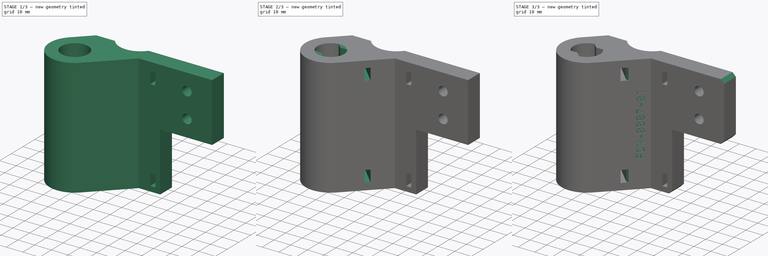
[diagram: build sequence overview — one tinted view per stage of 3, left to right]
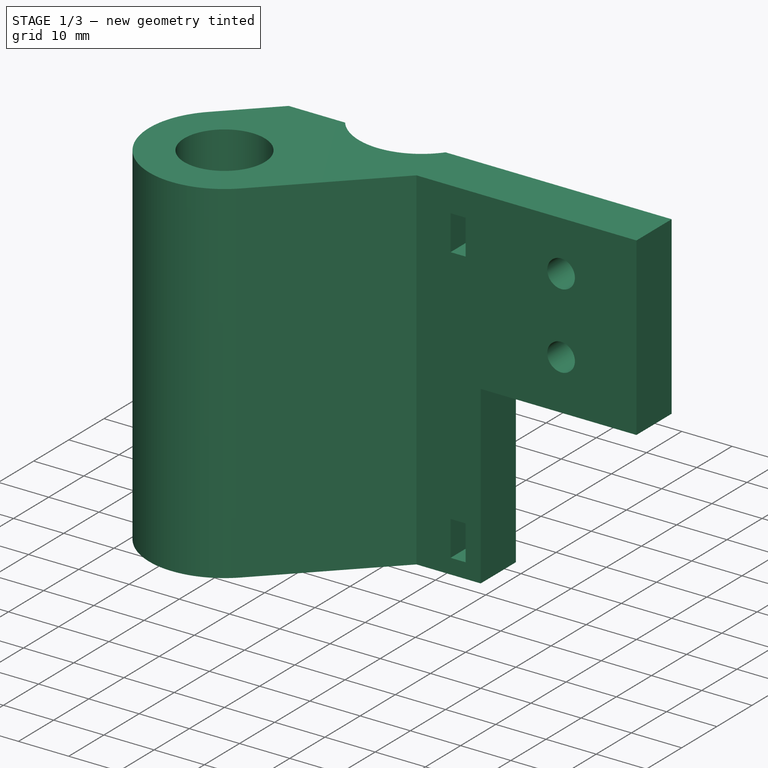
[diagram: stage 1 of 3 — iso view after this stage's code; geometry added in this stage tinted green]
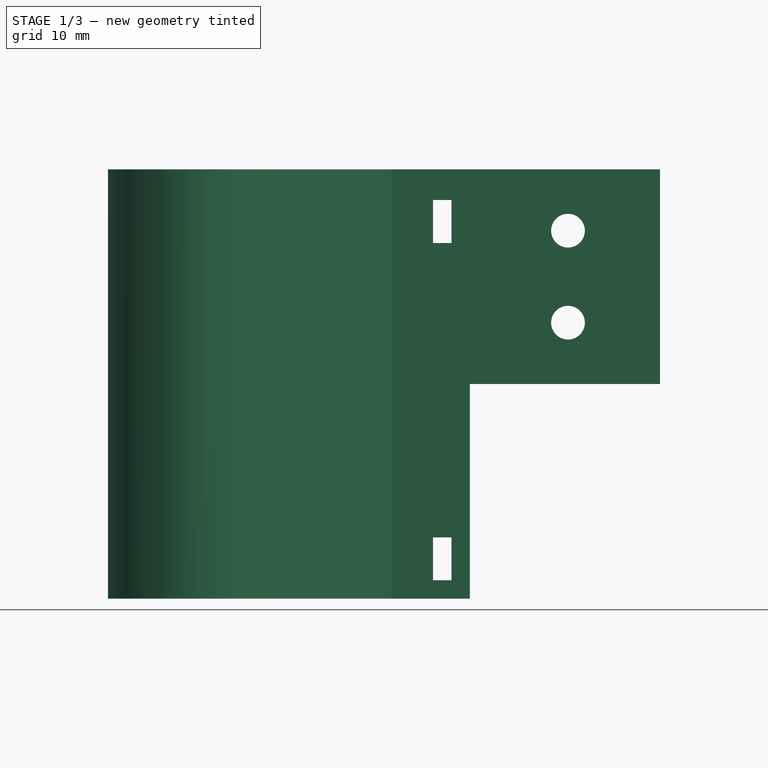
[diagram: stage 1 of 3 — front view after this stage's code; geometry added in this stage tinted green]
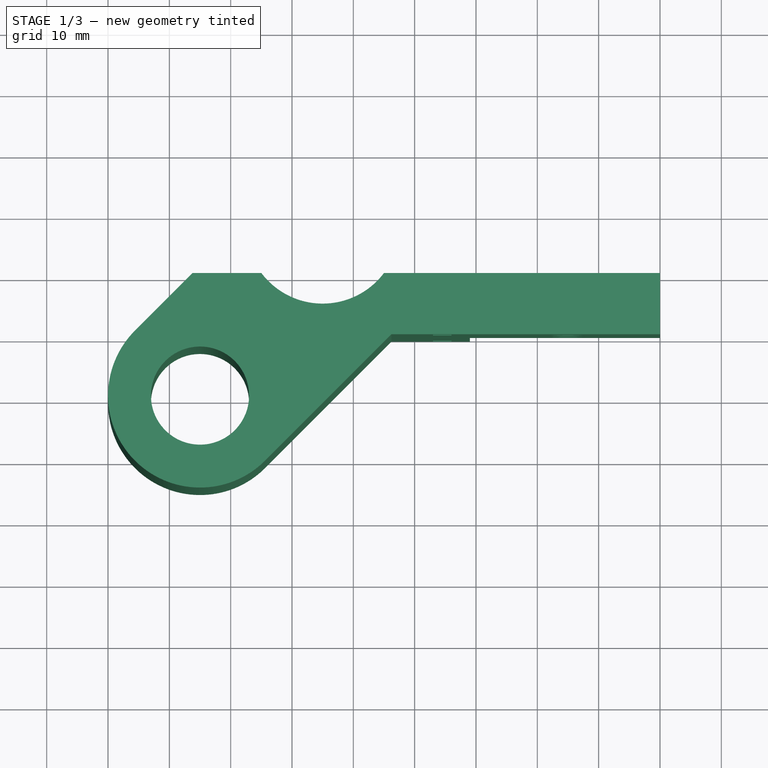
[diagram: stage 1 of 3 — top view after this stage's code; geometry added in this stage tinted green]
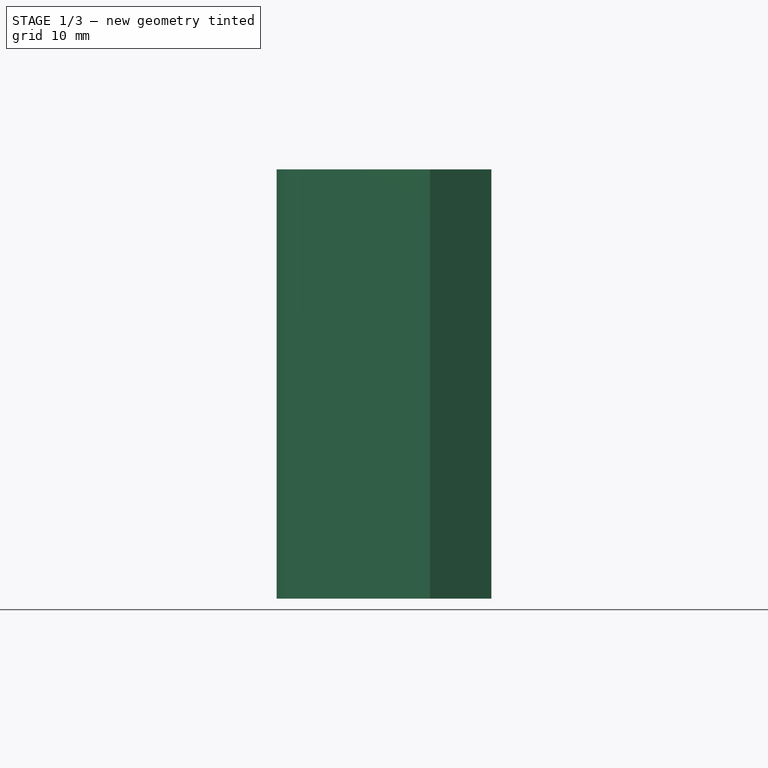
[diagram: stage 1 of 3 — right view after this stage's code; geometry added in this stage tinted green]
FCSTD DOCUMENT  (FreeCAD 0.19R24291 (Git))
Label: FDM-0007_frame-umbilical-mount
License: All rights reserved
LicenseURL: http://en.wikipedia.org/wiki/All_rights_reserved
objects: Sketcher::SketchObject×5, PartDesign::Pocket×4, PartDesign::Plane×3, PartDesign::Pad×2, PartDesign::Fillet×1, PartDesign::Chamfer×1, Part::Part2DObjectPython×1, PartDesign::Body×1
note: 26 computed .brp shape members not serialized (recipe doc carries the construction recipe); baked Part::Feature solids carry a one-line shape summary decoded from their .brp

FEATURE [Sketcher::SketchObject] Sketch
  FullyConstrained = true
  MapMode = 5
  Support = -> [XY_Plane]
  sketch-geometry (10):
    g0: LineSegment StartX=0 StartY=10 StartZ=0 EndX=0 EndY=0 EndZ=0
    g1: ArcOfCircle CenterX=-55 CenterY=17.5 CenterZ=0 NormalX=0 NormalY=0 NormalZ=1 AngleXU=0 Radius=12.5 StartAngle=3.78509 EndAngle=5.63968
    g2: LineSegment StartX=-76.2132 StartY=10 StartZ=0 EndX=-65 EndY=10 EndZ=0
    g3: LineSegment StartX=-45 StartY=10 StartZ=0 EndX=0 EndY=10 EndZ=0
    g4: Circle CenterX=-55 CenterY=17.5 CenterZ=0 NormalX=0 NormalY=0 NormalZ=1 AngleXU=0 Radius=12.5
    g5: Circle CenterX=-75 CenterY=-10 CenterZ=0 NormalX=0 NormalY=0 NormalZ=1 AngleXU=0 Radius=8
    g6: LineSegment StartX=-43.7868 StartY=0 StartZ=0 EndX=0 EndY=0 EndZ=0
    g7: ArcOfCircle CenterX=-75 CenterY=-10 CenterZ=0 NormalX=0 NormalY=0 NormalZ=1 AngleXU=0 Radius=15 StartAngle=2.3562 EndAngle=5.49779
    g8: LineSegment StartX=-64.3934 StartY=-20.6066 StartZ=0 EndX=-43.7868 EndY=0 EndZ=0
    g9: LineSegment StartX=-85.6066 StartY=0.60658 StartZ=0 EndX=-76.2132 EndY=10 EndZ=0
  constraints (30):
    c: Coincident(g3,g0)
    c: Vertical(g0)
    c: Distance(g0) = 10
    c: PointOnObject(g2,g1)
    c: PointOnObject(g3,g1)
    c: Tangent(g2,g3)
    c: Diameter(g1) = 25
    c: Coincident(g4,g1)
    c: PointOnObject(g1,g4)
    c: Horizontal(g3)
    c: PointOnObject(g1,g2)
    c: PointOnObject(g1,g3)
    c: DistanceX(g1,g0) = 55
    c: DistanceY(g0,g1) = 7.5
    c: Diameter(g5) = 16
    c: DistanceX(g5,g0) = 75
    c: Coincident(g6,g0)
    c: Horizontal(g6)
    c: Coincident(g0,g-1)
    c: DistanceY(g5,g0) = 10
    c: Coincident(g7,g5)
    c: Coincident(g8,g7)
    c: Coincident(g8,g6)
    c: Tangent(g7,g8)
    c: Angle(g8,g-1) = 2.35619
    c: Coincident(g9,g7)
    c: Coincident(g9,g2)
    c: Tangent(g9,g7)
    c: Parallel(g9,g8)
    c: Diameter(g7) = 30
FEATURE [PartDesign::Pad] Pad
  AllowMultiFace = false
  Direction = (1,1,1)
  Length = 70
  Length2 = 100
  Profile = -> Sketch
  Type = 0
FEATURE [Sketcher::SketchObject] Sketch001
  FullyConstrained = true
  MapMode = 5
  Placement = pos=(0,0,0) rot=(1,0,0;1.5708rad)
  Support = -> [XZ_Plane]
  sketch-geometry (10):
    g0: Circle CenterX=-15 CenterY=60 CenterZ=0 NormalX=0 NormalY=0 NormalZ=1 AngleXU=0 Radius=2.75
    g1: Circle CenterX=-15 CenterY=45 CenterZ=0 NormalX=0 NormalY=0 NormalZ=1 AngleXU=0 Radius=2.75
    g2: LineSegment StartX=-37 StartY=65 StartZ=0 EndX=-34 EndY=65 EndZ=0
    g3: LineSegment StartX=-34 StartY=65 StartZ=0 EndX=-34 EndY=58 EndZ=0
    g4: LineSegment StartX=-34 StartY=58 StartZ=0 EndX=-37 EndY=58 EndZ=0
    g5: LineSegment StartX=-37 StartY=58 StartZ=0 EndX=-37 EndY=65 EndZ=0
    g6: LineSegment StartX=-37 StartY=10 StartZ=0 EndX=-34 EndY=10 EndZ=0
    g7: LineSegment StartX=-34 StartY=10 StartZ=0 EndX=-34 EndY=3 EndZ=0
    g8: LineSegment StartX=-34 StartY=3 StartZ=0 EndX=-37 EndY=3 EndZ=0
    g9: LineSegment StartX=-37 StartY=3 StartZ=0 EndX=-37 EndY=10 EndZ=0
  constraints (30):
    c: Coincident(g2,g3)
    c: Coincident(g3,g4)
    c: Coincident(g4,g5)
    c: Coincident(g5,g2)
    c: Horizontal(g2)
    c: Horizontal(g4)
    c: Vertical(g3)
    c: Vertical(g5)
    c: Coincident(g6,g7)
    c: Coincident(g7,g8)
    c: Coincident(g8,g9)
    c: Coincident(g9,g6)
    c: Horizontal(g6)
    c: Horizontal(g8)
    c: Vertical(g7)
    c: Vertical(g9)
    c: PointOnObject(g4,g9)
    c: PointOnObject(g3,g7)
    c: Distance(g2,g-2) = 37
    c: Distance(g2) = 3
    c: Distance(g0,g-2) = 15
    c: Distance(g1,g-2) = 15
    c: Distance(g1,g-1) = 45
    c: Diameter(g0) = 5.5
    c: Diameter(g1) = 5.5
    c: DistanceY(g1,g0) = 15
    c: DistanceY(g5,g5) = 7
    c: DistanceY(g9,g9) = 7
    c: DistanceY(g-1,g3) = 58
    c: DistanceY(g-1,g7) = 3
FEATURE [PartDesign::Pocket] Pocket
  AllowMultiFace = false
  BaseFeature = -> Pad
  Length = 5
  Length2 = 100
  Profile = -> Sketch001
  Type = 1
FEATURE [Sketcher::SketchObject] Sketch002
  FullyConstrained = true
  MapMode = 5
  Placement = pos=(0,0,0) rot=(1,0,0;1.5708rad)
  Support = -> [XZ_Plane]
  sketch-geometry (4):
    g0: LineSegment StartX=0 StartY=0 StartZ=0 EndX=-31 EndY=0 EndZ=0
    g1: LineSegment StartX=-31 StartY=0 StartZ=0 EndX=-31 EndY=35 EndZ=0
    g2: LineSegment StartX=-31 StartY=35 StartZ=0 EndX=0 EndY=35 EndZ=0
    g3: LineSegment StartX=0 StartY=35 StartZ=0 EndX=0 EndY=0 EndZ=0
  constraints (12):
    c: Coincident(g0,g1)
    c: Coincident(g1,g2)
    c: Coincident(g2,g3)
    c: Coincident(g3,g0)
    c: Horizontal(g0)
    c: Horizontal(g2)
    c: Vertical(g1)
    c: Vertical(g3)
    c: PointOnObject(g0,g-2)
    c: Distance(g-1,g2) = 35
    c: Distance(g-1,g1) = 31
    c: PointOnObject(g-1,g0)
FEATURE [PartDesign::Pocket] Pocket001
  AllowMultiFace = false
  BaseFeature = -> Pocket
  Length = 10
  Length2 = 100
  Profile = -> Sketch002
  Refine = true
  Type = 0
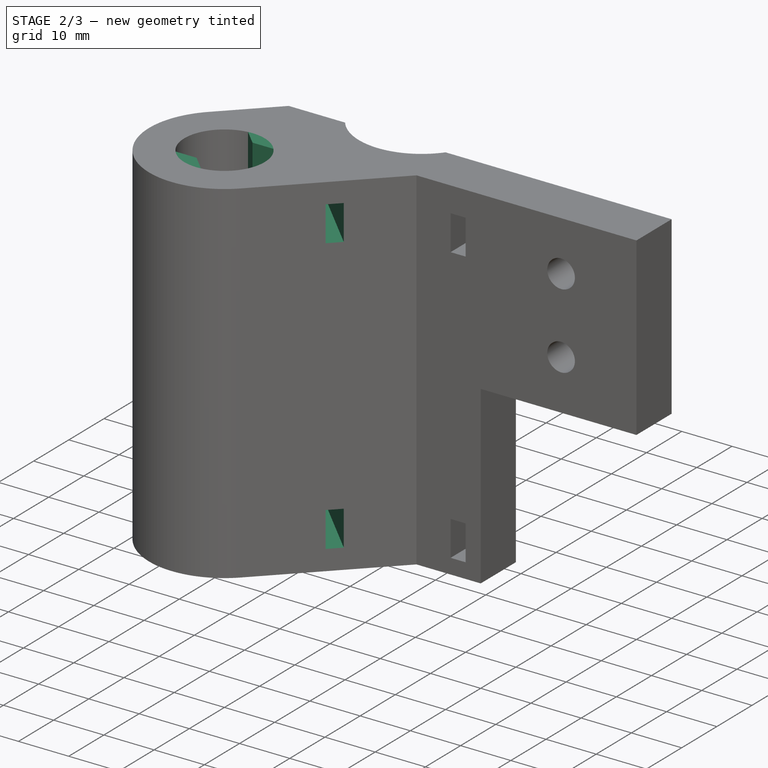
[diagram: stage 2 of 3 — iso view after this stage's code; geometry added in this stage tinted green]
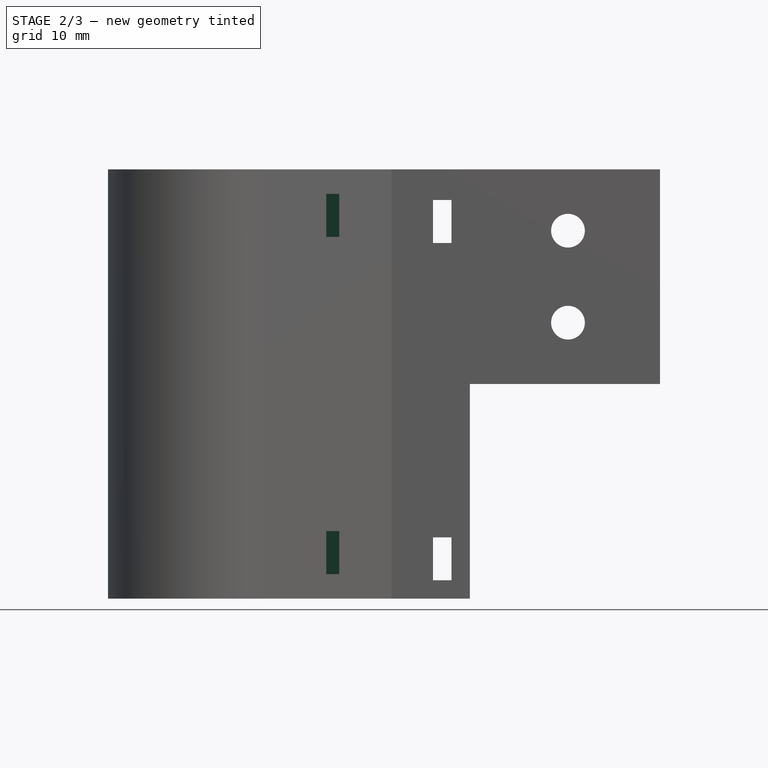
[diagram: stage 2 of 3 — front view after this stage's code; geometry added in this stage tinted green]
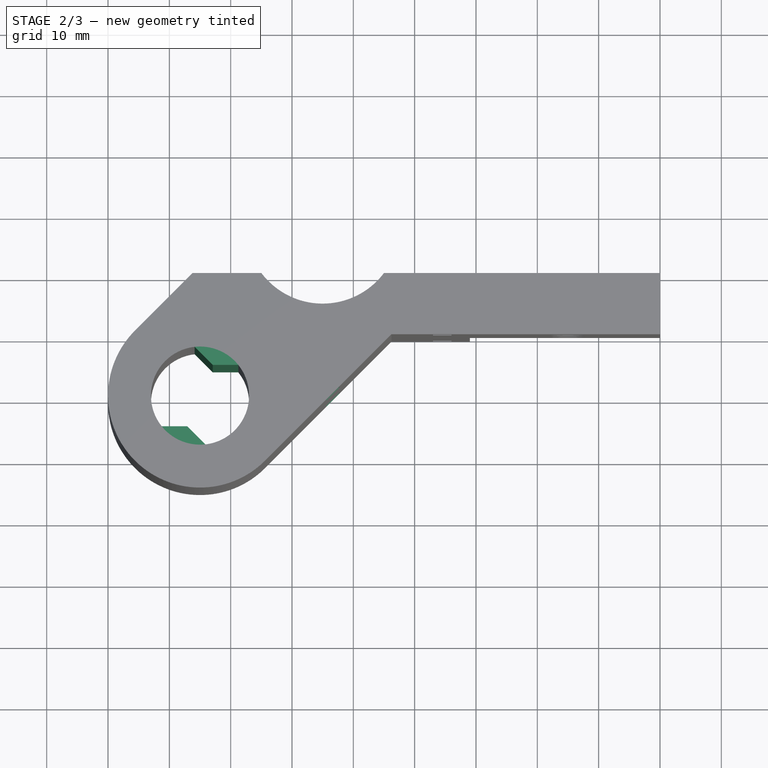
[diagram: stage 2 of 3 — top view after this stage's code; geometry added in this stage tinted green]
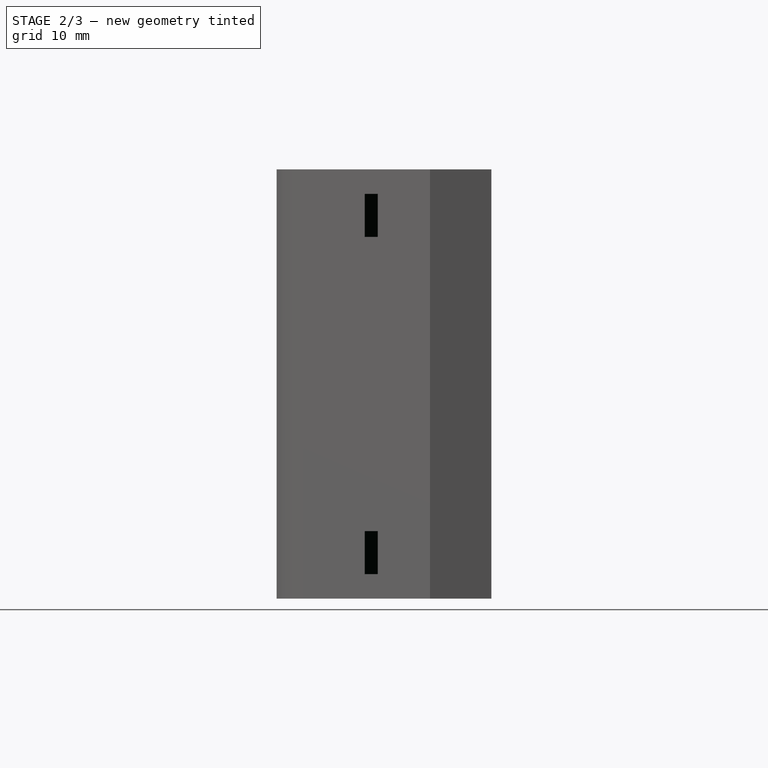
[diagram: stage 2 of 3 — right view after this stage's code; geometry added in this stage tinted green]
FEATURE [PartDesign::Plane] DatumPlane002
  Length = 87.1028
  MapMode = 5
  Placement = pos=(-21.8934,21.8934,0) rot=(0.862856,0.357407,0.357407;1.71777rad)
  ResizeMode = 0
  Support = -> [Pocket001]
  Width = 111.392
FEATURE [Sketcher::SketchObject] Sketch003
  FullyConstrained = true
  MapMode = 5
  Placement = pos=(-21.8934,21.8934,0) rot=(0.862856,0.357407,0.357407;1.71777rad)
  Support = -> [DatumPlane002]
  sketch-geometry (8):
    g0: LineSegment StartX=-46 StartY=66 StartZ=0 EndX=-43 EndY=66 EndZ=0
    g1: LineSegment StartX=-43 StartY=66 StartZ=0 EndX=-43 EndY=59 EndZ=0
    g2: LineSegment StartX=-43 StartY=59 StartZ=0 EndX=-46 EndY=59 EndZ=0
    g3: LineSegment StartX=-46 StartY=59 StartZ=0 EndX=-46 EndY=66 EndZ=0
    g4: LineSegment StartX=-46 StartY=11 StartZ=0 EndX=-43 EndY=11 EndZ=0
    g5: LineSegment StartX=-43 StartY=11 StartZ=0 EndX=-43 EndY=4 EndZ=0
    g6: LineSegment StartX=-43 StartY=4 StartZ=0 EndX=-46 EndY=4 EndZ=0
    g7: LineSegment StartX=-46 StartY=4 StartZ=0 EndX=-46 EndY=11 EndZ=0
  constraints (24):
    c: Coincident(g0,g1)
    c: Coincident(g1,g2)
    c: Coincident(g2,g3)
    c: Coincident(g3,g0)
    c: Horizontal(g0)
    c: Horizontal(g2)
    c: Vertical(g1)
    c: Vertical(g3)
    c: Coincident(g4,g5)
    c: Coincident(g5,g6)
    c: Coincident(g6,g7)
    c: Coincident(g7,g4)
    c: Horizontal(g4)
    c: Horizontal(g6)
    c: Vertical(g5)
    c: Vertical(g7)
    c: DistanceX(g0,g0) = 3
    c: DistanceY(g1,g1) = 7
    c: PointOnObject(g4,g3)
    c: Equal(g0,g4)
    c: Equal(g3,g7)
    c: DistanceX(g5,g-1) = 43
    c: DistanceY(g-1,g5) = 4
    c: DistanceY(g4,g1) = 48
FEATURE [PartDesign::Pocket] Pocket003
  BaseFeature = -> Pocket001
  Length = 36
  Length2 = 100
  Profile = -> Sketch003
  Type = 0
FEATURE [Sketcher::SketchObject] Sketch004
  FullyConstrained = false
  MapMode = 5
  Support = -> [XY_Plane]
  sketch-geometry (15):
    g0: LineSegment StartX=-81.245 StartY=-5 StartZ=0 EndX=-68.755 EndY=-5 EndZ=0
    g1: LineSegment StartX=-68.755 StartY=-5 StartZ=0 EndX=-68.755 EndY=-15 EndZ=0
    g2: LineSegment StartX=-68.755 StartY=-15 StartZ=0 EndX=-81.245 EndY=-15 EndZ=0
    g3: LineSegment StartX=-81.245 StartY=-15 StartZ=0 EndX=-81.245 EndY=-5 EndZ=0
    g4: Circle CenterX=-75 CenterY=-10 CenterZ=0 NormalX=0 NormalY=0 NormalZ=1 AngleXU=0 Radius=8
    g5: LineSegment StartX=-75.8803 StartY=-2.04859 StartZ=0 EndX=-67.0486 EndY=-10.8803 EndZ=0
    g6: LineSegment StartX=-67.0486 StartY=-10.8803 StartZ=0 EndX=-74.1197 EndY=-17.9514 EndZ=0
    g7: LineSegment StartX=-74.1197 StartY=-17.9514 StartZ=0 EndX=-82.9514 EndY=-9.11966 EndZ=0
    g8: LineSegment StartX=-82.9514 StartY=-9.11966 StartZ=0 EndX=-75.8803 EndY=-2.04859 EndZ=0
    g9: LineSegment StartX=-75.8803 StartY=-2.04859 StartZ=0 EndX=-72.9289 EndY=-5 EndZ=0
    g10: LineSegment StartX=-72.9289 StartY=-5 StartZ=0 EndX=-68.755 EndY=-5 EndZ=0
    g11: LineSegment StartX=-81.245 StartY=-15 StartZ=0 EndX=-77.0711 EndY=-15 EndZ=0
    g12: LineSegment StartX=-77.0711 StartY=-15 StartZ=0 EndX=-74.1197 EndY=-17.9514 EndZ=0
    g13: ArcOfCircle CenterX=-75 CenterY=-10 CenterZ=0 NormalX=0 NormalY=0 NormalZ=1 AngleXU=0 Radius=8 StartAngle=0.675132 EndAngle=1.68106
    g14: ArcOfCircle CenterX=-75 CenterY=-10 CenterZ=0 NormalX=0 NormalY=0 NormalZ=1 AngleXU=0 Radius=8 StartAngle=3.81672 EndAngle=4.82266
  constraints (40):
    c: Coincident(g0,g1)
    c: Coincident(g1,g2)
    c: Coincident(g2,g3)
    c: Coincident(g3,g0)
    c: Horizontal(g0)
    c: Horizontal(g2)
    c: Vertical(g1)
    c: Vertical(g3)
    c: DistanceY(g1,g1) = 10
    c: Diameter(g4) = 16
    c: PointOnObject(g0,g4)
    c: PointOnObject(g2,g4)
    c: Coincident(g5,g6)
    c: Coincident(g6,g7)
    c: Coincident(g7,g8)
    c: Coincident(g8,g5)
    c: Parallel(g5,g7)
    c: Parallel(g8,g6)
    c: Perpendicular(g5,g8)
    c: Distance(g6) = 10
    c: DistanceX(g4,g-1) = 75
    c: DistanceY(g4,g-1) = 10
    c: PointOnObject(g0,g4)
    c: PointOnObject(g5,g4)
    c: Coincident(g5,g9)
    c: Coincident(g9,g10)
    c: Coincident(g10,g0)
    c: Coincident(g2,g11)
    c: Coincident(g11,g12)
    c: Coincident(g12,g6)
    c: PointOnObject(g11,g2)
    c: PointOnObject(g11,g7)
    c: PointOnObject(g9,g5)
    c: Coincident(g13,g10)
    c: Coincident(g13,g9)
    c: PointOnObject(g9,g0)
    c: Coincident(g13,g4)
    c: Coincident(g14,g13)
    c: Coincident(g14,g11)
    c: Coincident(g14,g12)
FEATURE [PartDesign::Pad] Pad001
  BaseFeature = -> Pocket003
  Direction = (1,1,1)
  Length = 70
  Length2 = 100
  Profile = -> Sketch004
  Type = 0
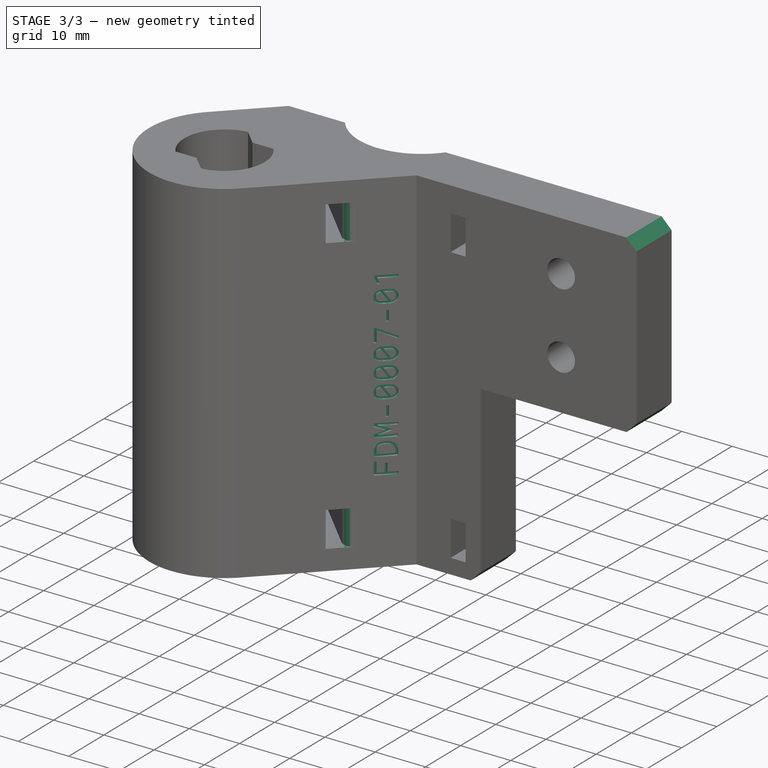
[diagram: stage 3 of 3 — iso view after this stage's code; geometry added in this stage tinted green]
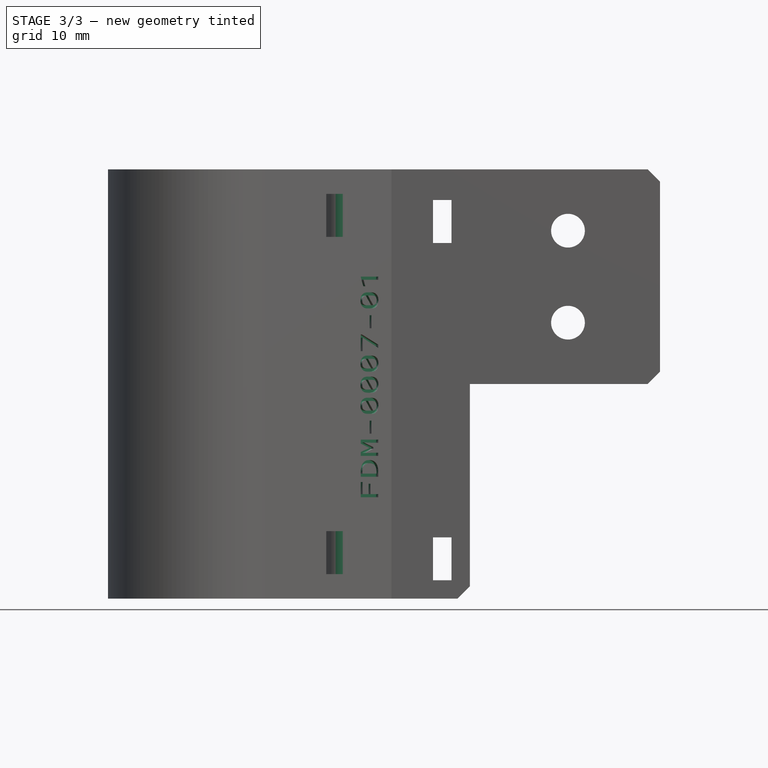
[diagram: stage 3 of 3 — front view after this stage's code; geometry added in this stage tinted green]
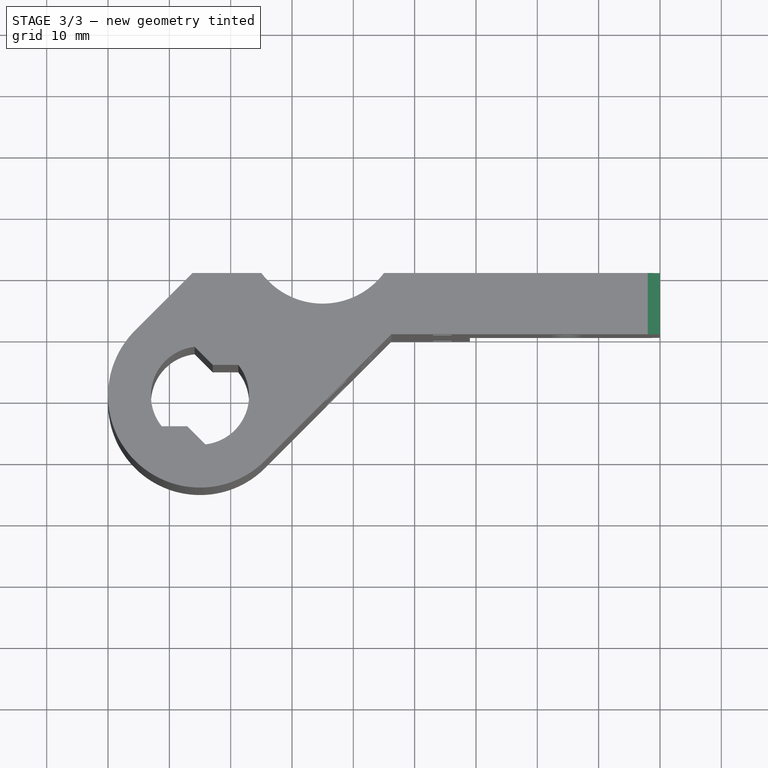
[diagram: stage 3 of 3 — top view after this stage's code; geometry added in this stage tinted green]
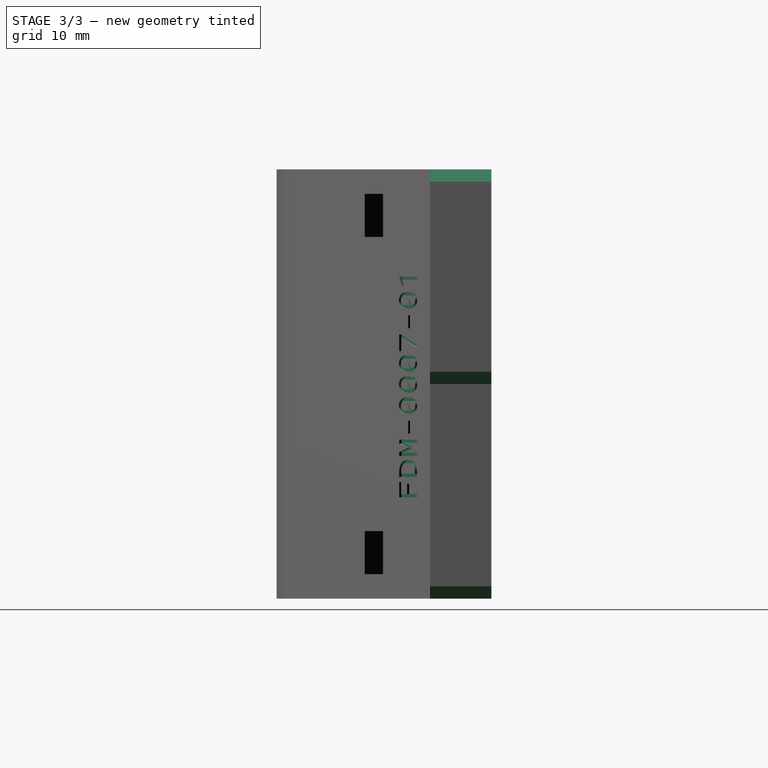
[diagram: stage 3 of 3 — right view after this stage's code; geometry added in this stage tinted green]
FEATURE [PartDesign::Fillet] Fillet
  Base = -> Pad001 [Edge45,Edge41,Edge15,Edge11]
  BaseFeature = -> Pad001
  Radius = 2
  SupportTransform = false
FEATURE [PartDesign::Chamfer] Chamfer
  Angle = 45
  Base = -> Fillet [Edge112,Edge47,Edge37]
  BaseFeature = -> Fillet
  ChamferType = 0
  FlipDirection = false
  Size = 2
  Size2 = 1
  SupportTransform = false
FEATURE [PartDesign::Plane] DatumPlane
  Length = 87.1028
  MapMode = 5
  Placement = pos=(-21.8934,21.8934,0) rot=(0.862856,0.357407,0.357407;1.71777rad)
  ResizeMode = 0
  Support = -> [Chamfer]
  Width = 111.392
FEATURE [PartDesign::Plane] DatumPlane001  label="PrintPlane"
  Length = 60
  MapMode = 5
  Placement = pos=(0,0,70) rot=(0,0,1;0rad)
  ResizeMode = 0
  Support = -> [Chamfer]
  Width = 60
FEATURE [Part::Part2DObjectPython] ShapeString001  label="PN"  # Draft 2D object (typed FeaturePython)
  AttachmentOffset = pos=(-34,16,0) rot=(0,0,1;1.5708rad)
  FontFile = ../../lib/fonts/RobotoMono-VariableFont_weight.ttf
  MapMode = 5
  Placement = pos=(-45.935,-2.14823,16) rot=(0.678598,-0.281085,0.678598;2.59356rad)
  Size = 5
  String = FDM-0007-01
  Support = -> [DatumPlane002,DatumPlane001,DatumPlane]
  Tracking = 0
FEATURE [PartDesign::Pocket] Pocket002
  BaseFeature = -> Chamfer
  Length = 0.5
  Length2 = 100
  Profile = -> ShapeString001
  Type = 0
FEATURE [PartDesign::Body] Body
  Group = -> [Sketch,Pad,Sketch001,Pocket,Sketch002,Pocket001,DatumPlane002,Sketch003,Pocket003,Sketch004,Pad001,Fillet,Chamfer,DatumPlane,DatumPlane001,ShapeString001,Pocket002]
  Origin = -> Origin
  Tip = -> Pocket002
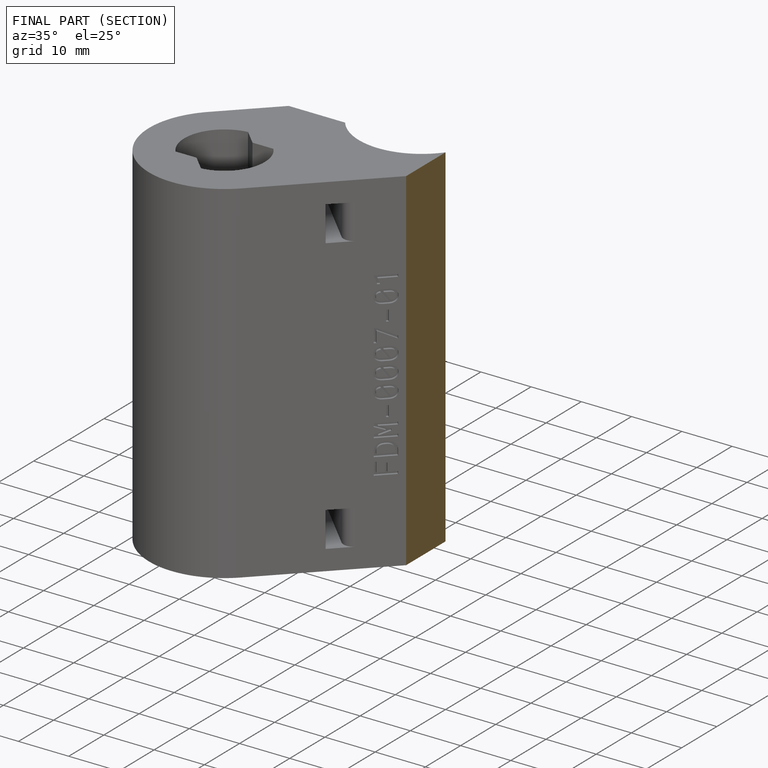
[diagram: finished part — half-section view (interior)]
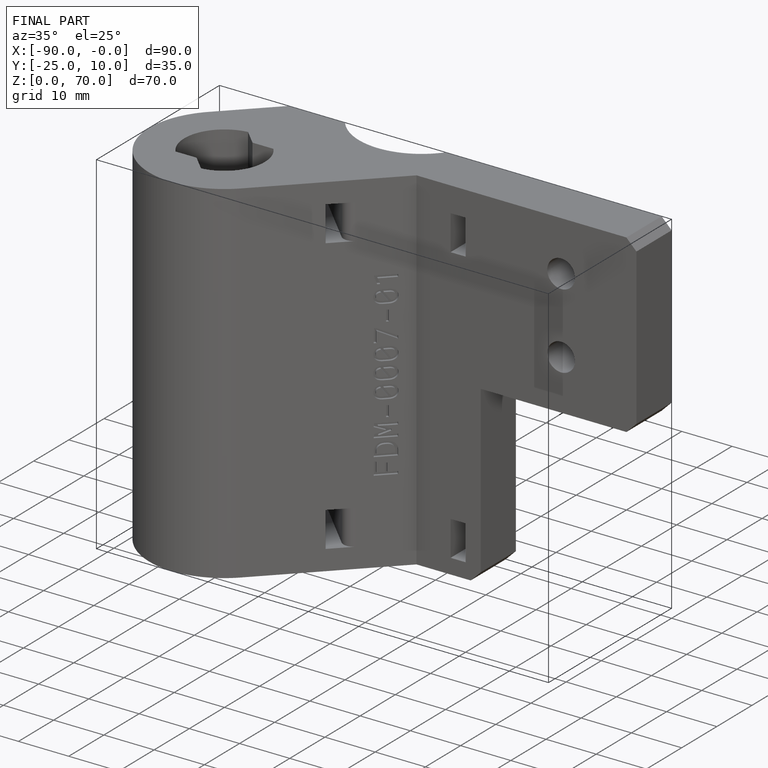
[diagram: finished part — iso view with bounding-box wireframe]
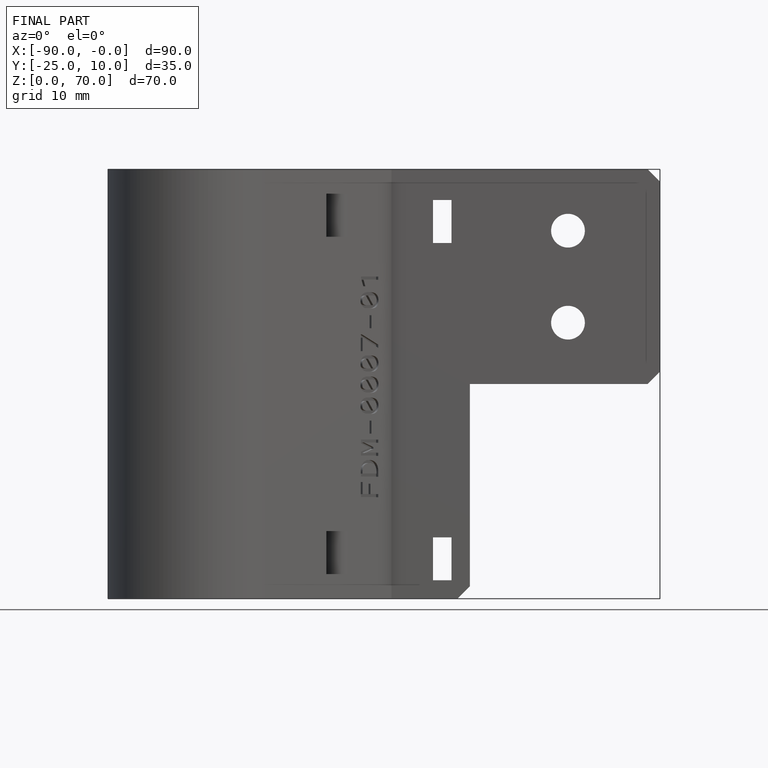
[diagram: finished part — front view with bounding-box wireframe]
